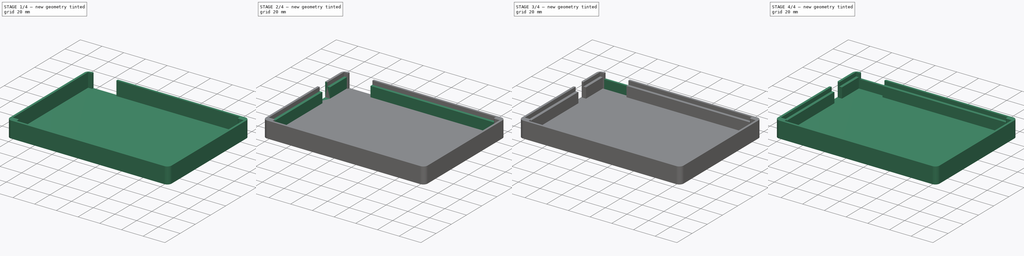
[diagram: build sequence overview — one tinted view per stage of 4, left to right]
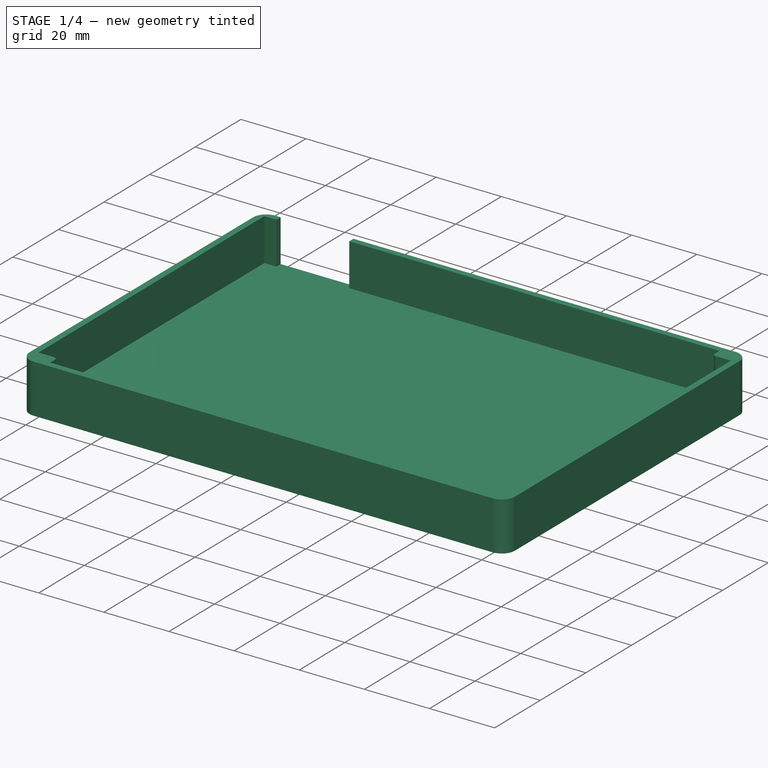
[diagram: stage 1 of 4 — iso view after this stage's code; geometry added in this stage tinted green]
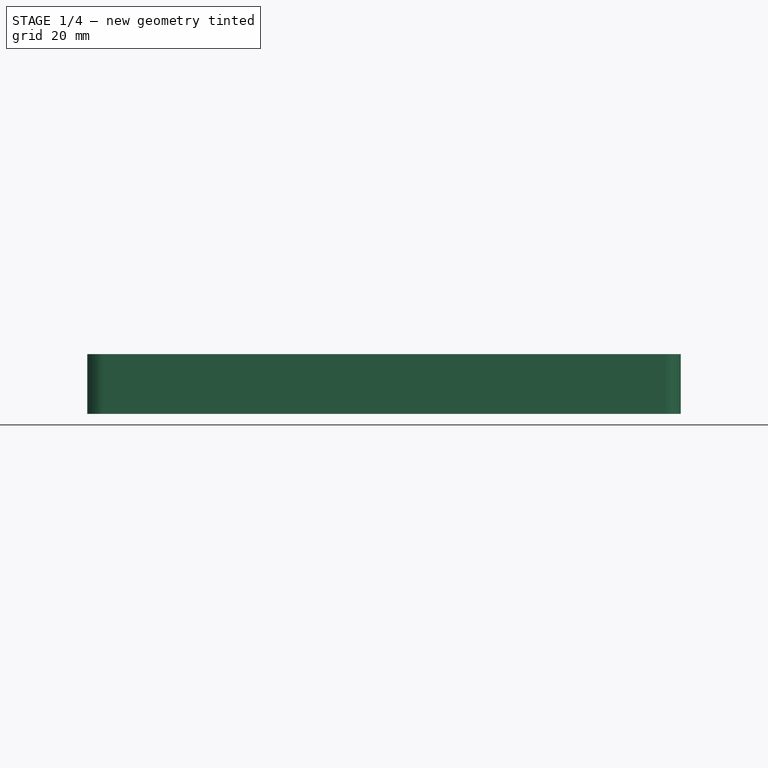
[diagram: stage 1 of 4 — front view after this stage's code; geometry added in this stage tinted green]
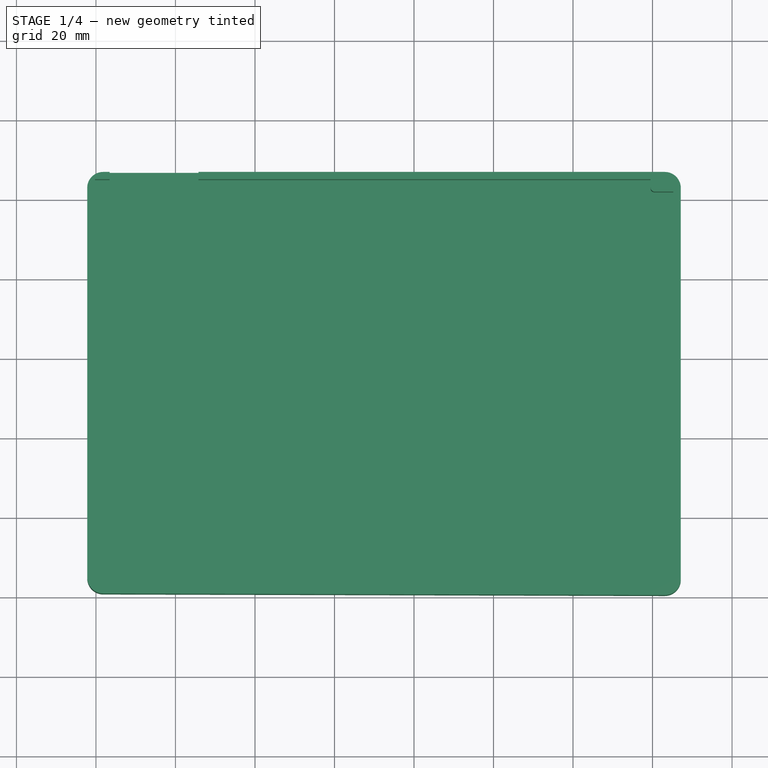
[diagram: stage 1 of 4 — top view after this stage's code; geometry added in this stage tinted green]
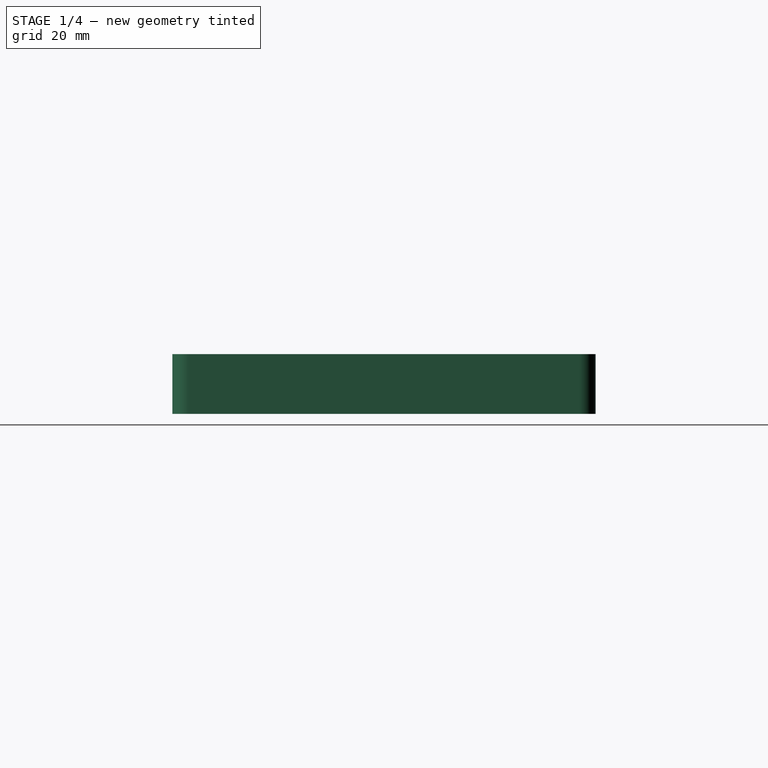
[diagram: stage 1 of 4 — right view after this stage's code; geometry added in this stage tinted green]
FCSTD DOCUMENT  (FreeCAD 1.0R39109 (Git))
Label: left_v2
License: All rights reserved
LicenseURL: https://en.wikipedia.org/wiki/All_rights_reserved
objects: Measure::MeasureLength×12, Sketcher::SketchObject×5, PartDesign::Fillet×4, PartDesign::Pad×3, PartDesign::Pocket×2, Measure::MeasureDistance×2, PartDesign::Body×1, App::DocumentObjectGroup×1
note: 38 computed .brp shape members not serialized (recipe doc carries the construction recipe); baked Part::Feature solids carry a one-line shape summary decoded from their .brp

FEATURE [Sketcher::SketchObject] Sketch
  ArcFitTolerance = 1e-06
  FullyConstrained = false
  MakeInternals = false
  sketch-geometry (49):
    g0: LineSegment StartX=83.4534 StartY=-33.1966 StartZ=0 EndX=83.4534 EndY=-34.9716 EndZ=0
    g1: LineSegment StartX=83.4515 StartY=-34.9811 StartZ=0 EndX=83.438 EndY=-34.9947 EndZ=0
    g2: LineSegment StartX=79.7534 StartY=-34.9966 StartZ=0 EndX=79.7534 EndY=-134.047 EndZ=0
    g3: LineSegment StartX=84.7064 StartY=-134.062 StartZ=0 EndX=84.879 EndY=-134.108 EndZ=0
    g4: LineSegment StartX=85.0409 StartY=-134.184 StartZ=0 EndX=85.1873 EndY=-134.286 EndZ=0
    g5: LineSegment StartX=85.3136 StartY=-134.413 StartZ=0 EndX=85.4161 EndY=-134.559 EndZ=0
    g6: LineSegment StartX=85.4916 StartY=-134.721 StartZ=0 EndX=85.5379 EndY=-134.894 EndZ=0
    g7: LineSegment StartX=85.5534 StartY=-135.072 StartZ=0 EndX=85.5534 EndY=-137.247 EndZ=0
    g8: LineSegment StartX=219.503 StartY=-137.247 StartZ=0 EndX=219.503 EndY=-134.772 EndZ=0
    g9: LineSegment StartX=219.519 StartY=-134.594 StartZ=0 EndX=219.565 EndY=-134.421 EndZ=0
    g10: LineSegment StartX=219.641 StartY=-134.259 StartZ=0 EndX=219.743 EndY=-134.113 EndZ=0
    g11: LineSegment StartX=219.87 StartY=-133.986 StartZ=0 EndX=220.016 EndY=-133.884 EndZ=0
    g12: LineSegment StartX=220.178 StartY=-133.808 StartZ=0 EndX=220.35 EndY=-133.762 EndZ=0
    g13: LineSegment StartX=220.528 StartY=-133.747 StartZ=0 EndX=225.203 EndY=-133.747 EndZ=0
    g14: LineSegment StartX=220.35 StartY=-38.081 StartZ=0 EndX=220.178 EndY=-38.0348 EndZ=0
    g15: LineSegment StartX=220.016 StartY=-37.9593 StartZ=0 EndX=219.87 EndY=-37.8568 EndZ=0
    g16: LineSegment StartX=219.743 StartY=-37.7304 StartZ=0 EndX=219.641 EndY=-37.5841 EndZ=0
    g17: LineSegment StartX=219.565 StartY=-37.4222 StartZ=0 EndX=219.519 EndY=-37.2496 EndZ=0
    g18: LineSegment StartX=219.503 StartY=-34.9966 StartZ=0 EndX=105.828 EndY=-34.9966 EndZ=0
    g19: LineSegment StartX=105.819 StartY=-34.9947 StartZ=0 EndX=105.805 EndY=-34.9811 EndZ=0
    g20: LineSegment StartX=220.35 StartY=-38.081 StartZ=0 EndX=220.528 EndY=-38.0966 EndZ=0
    g21: LineSegment StartX=220.35 StartY=-133.762 StartZ=0 EndX=220.528 EndY=-133.747 EndZ=0
    g22: LineSegment StartX=219.519 StartY=-134.594 StartZ=0 EndX=219.503 EndY=-134.772 EndZ=0
    g23: LineSegment StartX=85.5379 StartY=-134.894 StartZ=0 EndX=85.5534 EndY=-135.072 EndZ=0
    g24: LineSegment StartX=84.5284 StartY=-134.047 StartZ=0 EndX=84.7064 EndY=-134.062 EndZ=0
    g25: LineSegment StartX=83.4534 StartY=-34.9716 StartZ=0 EndX=83.4515 EndY=-34.9811 EndZ=0
    g26: LineSegment StartX=83.4284 StartY=-34.9966 StartZ=0 EndX=83.438 EndY=-34.9947 EndZ=0
    g27: LineSegment StartX=105.803 StartY=-33.1966 StartZ=0 EndX=105.803 EndY=-32.1966 EndZ=0
    g28: LineSegment StartX=83.4534 StartY=-33.1966 StartZ=0 EndX=83.4534 EndY=-32.1966 EndZ=0
    g29: LineSegment StartX=83.4534 StartY=-32.1966 StartZ=0 EndX=105.803 EndY=-32.1966 EndZ=0
    g30: LineSegment StartX=219.503 StartY=-37.0716 StartZ=0 EndX=219.519 EndY=-37.2496 EndZ=0
    g31: LineSegment StartX=219.503 StartY=-34.9966 StartZ=0 EndX=219.503 EndY=-37.0716 EndZ=0
    g32: LineSegment StartX=220.528 StartY=-38.0966 StartZ=0 EndX=225.203 EndY=-38.0966 EndZ=0
    g33: LineSegment StartX=85.5534 StartY=-137.247 StartZ=0 EndX=219.503 EndY=-137.247 EndZ=0
    g34: LineSegment StartX=79.7534 StartY=-134.047 StartZ=0 EndX=84.5284 EndY=-134.047 EndZ=0
    g35: LineSegment StartX=79.7534 StartY=-34.9966 StartZ=0 EndX=83.4284 EndY=-34.9966 EndZ=0
    g36: LineSegment StartX=105.803 StartY=-33.1966 StartZ=0 EndX=105.803 EndY=-34.9716 EndZ=0
    g37: LineSegment StartX=105.819 StartY=-34.9947 StartZ=0 EndX=105.828 EndY=-34.9966 EndZ=0
    g38: LineSegment StartX=105.803 StartY=-34.9716 StartZ=0 EndX=105.805 EndY=-34.9811 EndZ=0
    g39: LineSegment StartX=219.565 StartY=-37.4222 StartZ=0 EndX=219.641 EndY=-37.5841 EndZ=0
    g40: LineSegment StartX=219.743 StartY=-37.7304 StartZ=0 EndX=219.87 EndY=-37.8568 EndZ=0
    g41: LineSegment StartX=220.016 StartY=-37.9593 StartZ=0 EndX=220.178 EndY=-38.0348 EndZ=0
    g42: LineSegment StartX=225.203 StartY=-38.0966 StartZ=0 EndX=225.203 EndY=-133.747 EndZ=0
    g43: LineSegment StartX=219.565 StartY=-134.421 StartZ=0 EndX=219.641 EndY=-134.259 EndZ=0
    g44: LineSegment StartX=219.743 StartY=-134.113 StartZ=0 EndX=219.87 EndY=-133.986 EndZ=0
    g45: LineSegment StartX=220.016 StartY=-133.884 StartZ=0 EndX=220.178 EndY=-133.808 EndZ=0
    g46: LineSegment StartX=85.4161 StartY=-134.559 StartZ=0 EndX=85.4916 EndY=-134.721 EndZ=0
    g47: LineSegment StartX=85.1873 StartY=-134.286 StartZ=0 EndX=85.3136 EndY=-134.413 EndZ=0
    g48: LineSegment StartX=84.879 StartY=-134.108 StartZ=0 EndX=85.0409 EndY=-134.184 EndZ=0
  constraints (68):
    c: Vertical(g0)
    c: Vertical(g2)
    c: Vertical(g7)
    c: Vertical(g8)
    c: Horizontal(g13)
    c: Horizontal(g18)
    c: Coincident(g20,g14)
    c: Coincident(g21,g12)
    c: Coincident(g21,g13)
    c: Coincident(g22,g9)
    c: Coincident(g22,g8)
    c: Coincident(g23,g6)
    c: Coincident(g23,g7)
    c: Coincident(g24,g3)
    c: Coincident(g25,g0)
    c: Coincident(g25,g1)
    c: Coincident(g26,g1)
    c: Distance(g27) = 1
    c: Vertical(g27)
    c: Distance(g28) = 1
    c: Vertical(g28)
    c: Coincident(g28,g0)
    c: Coincident(g29,g28)
    c: Coincident(g29,g27)
    c: Horizontal(g29)
    c: Coincident(g30,g17)
    c: Coincident(g31,g18)
    c: Coincident(g31,g30)
    c: Vertical(g31)
    c: Coincident(g32,g20)
    c: Horizontal(g32)
    c: Coincident(g33,g7)
    c: Coincident(g33,g8)
    c: Horizontal(g33)
    c: Coincident(g34,g2)
    c: Coincident(g34,g24)
    c: Horizontal(g34)
    c: Coincident(g35,g2)
    c: Coincident(g35,g26)
    c: Horizontal(g35)
    c: Coincident(g36,g27)
    c: Vertical(g36)
    c: Coincident(g37,g19)
    c: Coincident(g37,g18)
    c: Coincident(g38,g36)
    c: Coincident(g38,g19)
    c: Coincident(g39,g17)
    c: Coincident(g39,g16)
    c: Coincident(g40,g16)
    c: Coincident(g40,g15)
    c: Coincident(g41,g15)
    c: Coincident(g41,g14)
    c: Coincident(g42,g32)
    c: Coincident(g42,g13)
    c: Vertical(g42)
    c: Coincident(g43,g9)
    c: Coincident(g43,g10)
    c: Coincident(g44,g10)
    c: Coincident(g44,g11)
    c: Coincident(g45,g11)
    c: Coincident(g45,g12)
    c: Coincident(g46,g5)
    c: Coincident(g46,g6)
    c: Coincident(g47,g4)
    c: Coincident(g47,g5)
    c: Coincident(g48,g3)
    c: Coincident(g48,g4)
    c: DistanceX(g2,g0) = 3.7
FEATURE [Sketcher::SketchObject] Sketch001
  ArcFitTolerance = 1e-06
  FullyConstrained = false
  MakeInternals = false
  sketch-geometry (72):
    g0: LineSegment StartX=225.796 StartY=-34.1971 StartZ=0 EndX=226.059 EndY=-34.46 EndZ=0
    g1: LineSegment StartX=226.297 StartY=-34.746 StartZ=0 EndX=226.507 EndY=-35.0527 EndZ=0
    g2: LineSegment StartX=226.688 StartY=-35.3775 StartZ=0 EndX=226.838 EndY=-35.7176 EndZ=0
    g3: LineSegment StartX=226.956 StartY=-36.0701 StartZ=0 EndX=227.041 EndY=-36.432 EndZ=0
    g4: LineSegment StartX=227.11 StartY=-37.1716 StartZ=0 EndX=227.11 EndY=-135.565 EndZ=0
    g5: LineSegment StartX=227.093 StartY=-135.937 StartZ=0 EndX=227.041 EndY=-136.305 EndZ=0
    g6: LineSegment StartX=227.041 StartY=-136.305 StartZ=0 EndX=226.956 EndY=-136.667 EndZ=0
    g7: LineSegment StartX=226.956 StartY=-136.667 StartZ=0 EndX=226.838 EndY=-137.019 EndZ=0
    g8: LineSegment StartX=226.838 StartY=-137.019 StartZ=0 EndX=226.688 EndY=-137.359 EndZ=0
    g9: LineSegment StartX=226.688 StartY=-137.359 StartZ=0 EndX=226.507 EndY=-137.684 EndZ=0
    g10: LineSegment StartX=226.507 StartY=-137.684 StartZ=0 EndX=226.297 EndY=-137.991 EndZ=0
    g11: LineSegment StartX=226.297 StartY=-137.991 StartZ=0 EndX=226.059 EndY=-138.277 EndZ=0
    g12: LineSegment StartX=226.059 StartY=-138.277 StartZ=0 EndX=225.796 EndY=-138.54 EndZ=0
    g13: LineSegment StartX=225.796 StartY=-138.54 StartZ=0 EndX=225.51 EndY=-138.777 EndZ=0
    g14: LineSegment StartX=225.51 StartY=-138.777 StartZ=0 EndX=225.204 EndY=-138.987 EndZ=0
    g15: LineSegment StartX=225.204 StartY=-138.987 StartZ=0 EndX=224.879 EndY=-139.168 EndZ=0
    g16: LineSegment StartX=224.879 StartY=-139.168 StartZ=0 EndX=224.539 EndY=-139.319 EndZ=0
    g17: LineSegment StartX=224.539 StartY=-139.319 StartZ=0 EndX=224.186 EndY=-139.437 EndZ=0
    g18: LineSegment StartX=224.186 StartY=-139.437 StartZ=0 EndX=223.824 EndY=-139.522 EndZ=0
    g19: LineSegment StartX=223.824 StartY=-139.522 StartZ=0 EndX=223.456 EndY=-139.573 EndZ=0
    g20: LineSegment StartX=223.085 StartY=-139.59 StartZ=0 EndX=81.8284 EndY=-139.197 EndZ=0
    g21: LineSegment StartX=81.457 StartY=-139.179 StartZ=0 EndX=81.0888 EndY=-139.128 EndZ=0
    g22: LineSegment StartX=81.0888 StartY=-139.128 StartZ=0 EndX=80.7269 EndY=-139.043 EndZ=0
    g23: LineSegment StartX=80.7269 StartY=-139.043 StartZ=0 EndX=80.3744 EndY=-138.925 EndZ=0
    g24: LineSegment StartX=80.3744 StartY=-138.925 StartZ=0 EndX=80.0343 EndY=-138.775 EndZ=0
    g25: LineSegment StartX=80.0343 StartY=-138.775 StartZ=0 EndX=79.7095 EndY=-138.594 EndZ=0
    g26: LineSegment StartX=79.7095 StartY=-138.594 StartZ=0 EndX=79.4028 EndY=-138.384 EndZ=0
    g27: LineSegment StartX=79.4028 StartY=-138.384 StartZ=0 EndX=79.1168 EndY=-138.146 EndZ=0
    g28: LineSegment StartX=79.1168 StartY=-138.146 StartZ=0 EndX=78.8539 EndY=-137.883 EndZ=0
    g29: LineSegment StartX=78.8539 StartY=-137.883 StartZ=0 EndX=78.6164 EndY=-137.597 EndZ=0
    g30: LineSegment StartX=78.6164 StartY=-137.597 StartZ=0 EndX=78.4063 EndY=-137.29 EndZ=0
    g31: LineSegment StartX=78.4063 StartY=-137.29 StartZ=0 EndX=78.2254 EndY=-136.966 EndZ=0
    g32: LineSegment StartX=78.2254 StartY=-136.966 StartZ=0 EndX=78.0752 EndY=-136.626 EndZ=0
    g33: LineSegment StartX=78.0752 StartY=-136.626 StartZ=0 EndX=77.9571 EndY=-136.273 EndZ=0
    g34: LineSegment StartX=77.9571 StartY=-136.273 StartZ=0 EndX=77.872 EndY=-135.911 EndZ=0
    g35: LineSegment StartX=77.872 StartY=-135.911 StartZ=0 EndX=77.8206 EndY=-135.543 EndZ=0
    g36: LineSegment StartX=77.8034 StartY=-135.172 StartZ=0 EndX=77.8034 EndY=-37.1716 EndZ=0
    g37: LineSegment StartX=77.8206 StartY=-36.8002 StartZ=0 EndX=77.872 EndY=-36.432 EndZ=0
    g38: LineSegment StartX=77.872 StartY=-36.432 StartZ=0 EndX=77.9571 EndY=-36.0701 EndZ=0
    g39: LineSegment StartX=77.9571 StartY=-36.0701 StartZ=0 EndX=78.0752 EndY=-35.7176 EndZ=0
    g40: LineSegment StartX=78.0752 StartY=-35.7176 StartZ=0 EndX=78.2254 EndY=-35.3775 EndZ=0
    g41: LineSegment StartX=78.2254 StartY=-35.3775 StartZ=0 EndX=78.4063 EndY=-35.0527 EndZ=0
    g42: LineSegment StartX=78.4063 StartY=-35.0527 StartZ=0 EndX=78.6164 EndY=-34.746 EndZ=0
    g43: LineSegment StartX=78.6164 StartY=-34.746 StartZ=0 EndX=78.8539 EndY=-34.46 EndZ=0
    g44: LineSegment StartX=78.8539 StartY=-34.46 StartZ=0 EndX=79.1168 EndY=-34.1971 EndZ=0
    g45: LineSegment StartX=79.1168 StartY=-34.1971 StartZ=0 EndX=79.4028 EndY=-33.9596 EndZ=0
    g46: LineSegment StartX=79.4028 StartY=-33.9596 StartZ=0 EndX=79.7095 EndY=-33.7495 EndZ=0
    g47: LineSegment StartX=79.7095 StartY=-33.7495 StartZ=0 EndX=80.0343 EndY=-33.5686 EndZ=0
    g48: LineSegment StartX=80.0343 StartY=-33.5686 StartZ=0 EndX=80.3744 EndY=-33.4184 EndZ=0
    g49: LineSegment StartX=80.3744 StartY=-33.4184 StartZ=0 EndX=80.7269 EndY=-33.3003 EndZ=0
    g50: LineSegment StartX=80.7269 StartY=-33.3003 StartZ=0 EndX=81.0888 EndY=-33.2151 EndZ=0
    g51: LineSegment StartX=81.0888 StartY=-33.2151 StartZ=0 EndX=81.457 EndY=-33.1638 EndZ=0
    g52: LineSegment StartX=81.8284 StartY=-33.1466 StartZ=0 EndX=223.085 EndY=-33.1466 EndZ=0
    g53: LineSegment StartX=223.085 StartY=-33.1466 StartZ=0 EndX=223.456 EndY=-33.1637 EndZ=0
    g54: LineSegment StartX=223.456 StartY=-33.1637 StartZ=0 EndX=223.824 EndY=-33.2151 EndZ=0
    g55: LineSegment StartX=223.824 StartY=-33.2151 StartZ=0 EndX=224.186 EndY=-33.3002 EndZ=0
    g56: LineSegment StartX=224.186 StartY=-33.3002 StartZ=0 EndX=224.539 EndY=-33.4184 EndZ=0
    g57: LineSegment StartX=224.539 StartY=-33.4184 StartZ=0 EndX=224.879 EndY=-33.5685 EndZ=0
    g58: LineSegment StartX=224.879 StartY=-33.5685 StartZ=0 EndX=225.204 EndY=-33.7494 EndZ=0
    g59: LineSegment StartX=225.204 StartY=-33.7494 StartZ=0 EndX=225.51 EndY=-33.9595 EndZ=0
    g60: LineSegment StartX=225.51 StartY=-33.9595 StartZ=0 EndX=225.796 EndY=-34.1971 EndZ=0
    g61: LineSegment StartX=226.059 StartY=-34.46 StartZ=0 EndX=226.297 EndY=-34.746 EndZ=0
    g62: LineSegment StartX=226.507 StartY=-35.0527 StartZ=0 EndX=226.688 EndY=-35.3775 EndZ=0
    g63: LineSegment StartX=226.838 StartY=-35.7176 StartZ=0 EndX=226.956 EndY=-36.0701 EndZ=0
    g64: LineSegment StartX=227.041 StartY=-36.432 StartZ=0 EndX=227.093 EndY=-36.8005 EndZ=0
    g65: LineSegment StartX=227.093 StartY=-36.8005 StartZ=0 EndX=227.11 EndY=-37.1716 EndZ=0
    g66: LineSegment StartX=227.11 StartY=-135.565 StartZ=0 EndX=227.093 EndY=-135.937 EndZ=0
    g67: LineSegment StartX=223.085 StartY=-139.59 StartZ=0 EndX=223.456 EndY=-139.573 EndZ=0
    g68: LineSegment StartX=81.8284 StartY=-139.197 StartZ=0 EndX=81.457 EndY=-139.179 EndZ=0
    g69: LineSegment StartX=77.8034 StartY=-135.172 StartZ=0 EndX=77.8206 EndY=-135.543 EndZ=0
    g70: LineSegment StartX=77.8206 StartY=-36.8002 StartZ=0 EndX=77.8034 EndY=-37.1716 EndZ=0
    g71: LineSegment StartX=81.457 StartY=-33.1638 StartZ=0 EndX=81.8284 EndY=-33.1466 EndZ=0
  constraints (33):
    c: Vertical(g4)
    c: Vertical(g36)
    c: Horizontal(g52)
    c: Coincident(g53,g52)
    c: Coincident(g54,g53)
    c: Coincident(g55,g54)
    c: Coincident(g56,g55)
    c: Coincident(g57,g56)
    c: Coincident(g58,g57)
    c: Coincident(g59,g58)
    c: Coincident(g60,g59)
    c: Coincident(g60,g0)
    c: Coincident(g61,g0)
    c: Coincident(g61,g1)
    c: Coincident(g62,g1)
    c: Coincident(g62,g2)
    c: Coincident(g63,g2)
    c: Coincident(g63,g3)
    c: Coincident(g64,g3)
    c: Coincident(g65,g64)
    c: Coincident(g65,g4)
    c: Coincident(g66,g4)
    c: Coincident(g66,g5)
    c: Coincident(g67,g20)
    c: Coincident(g67,g19)
    c: Coincident(g68,g20)
    c: Coincident(g68,g21)
    c: Coincident(g69,g36)
    c: Coincident(g69,g35)
    c: Coincident(g70,g37)
    c: Coincident(g70,g36)
    c: Coincident(g71,g51)
    c: Coincident(g71,g52)
FEATURE [PartDesign::Pad] Pad
  Direction = (0,0,1)
  Length = 15
  Length2 = 10
  Profile = -> Sketch001
  ReferenceAxis = -> Sketch001 [N_Axis]
  Refine = true
  Reversed = true
  Suppressed = false
  Type = 0
FEATURE [PartDesign::Pocket] Pocket
  BaseFeature = -> Pad
  Direction = (0,0,-1)
  Length = 13
  Length2 = 5
  Profile = -> Sketch
  ReferenceAxis = -> Sketch [N_Axis]
  Refine = true
  Suppressed = false
  Type = 0
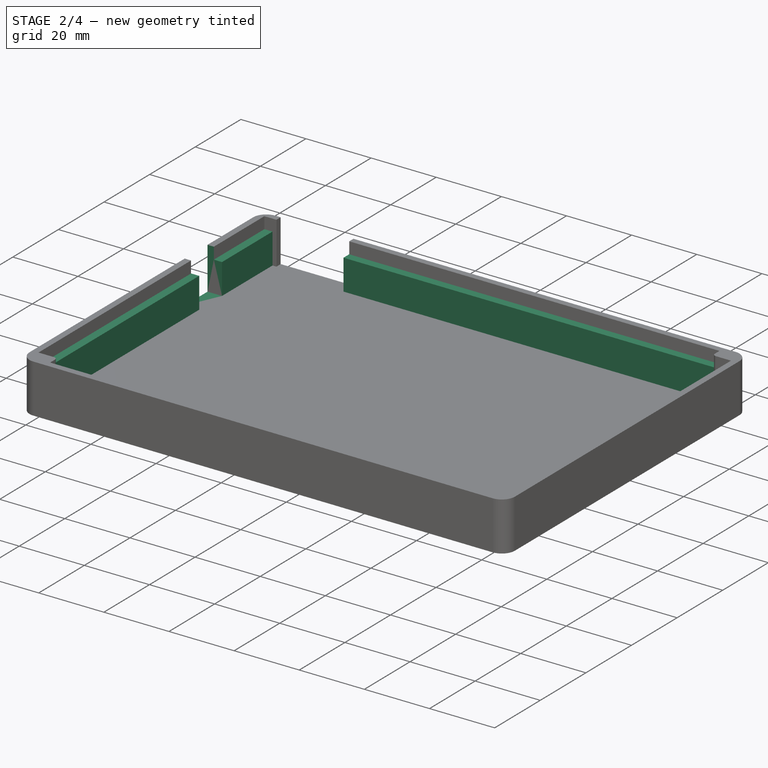
[diagram: stage 2 of 4 — iso view after this stage's code; geometry added in this stage tinted green]
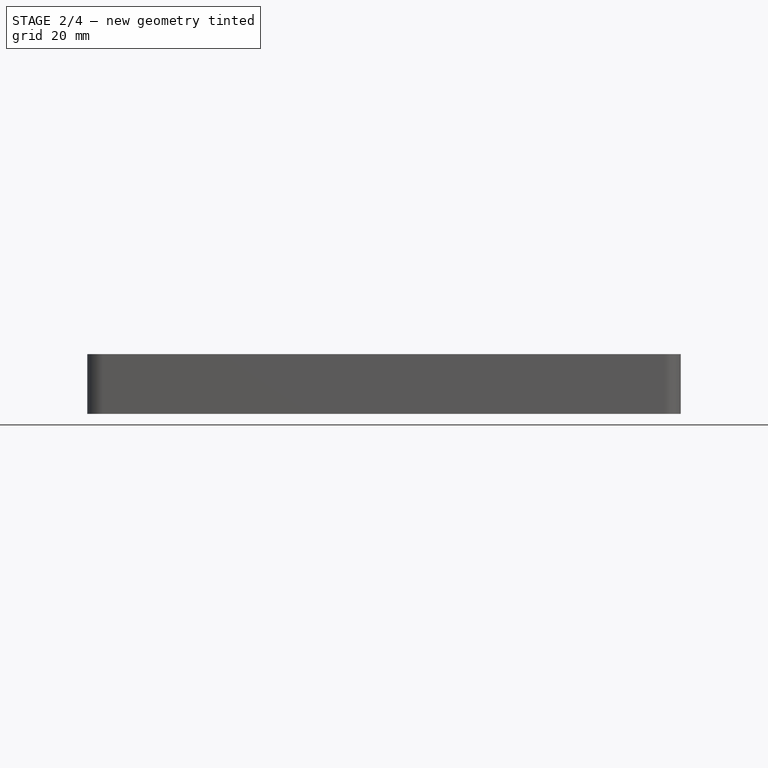
[diagram: stage 2 of 4 — front view after this stage's code; geometry added in this stage tinted green]
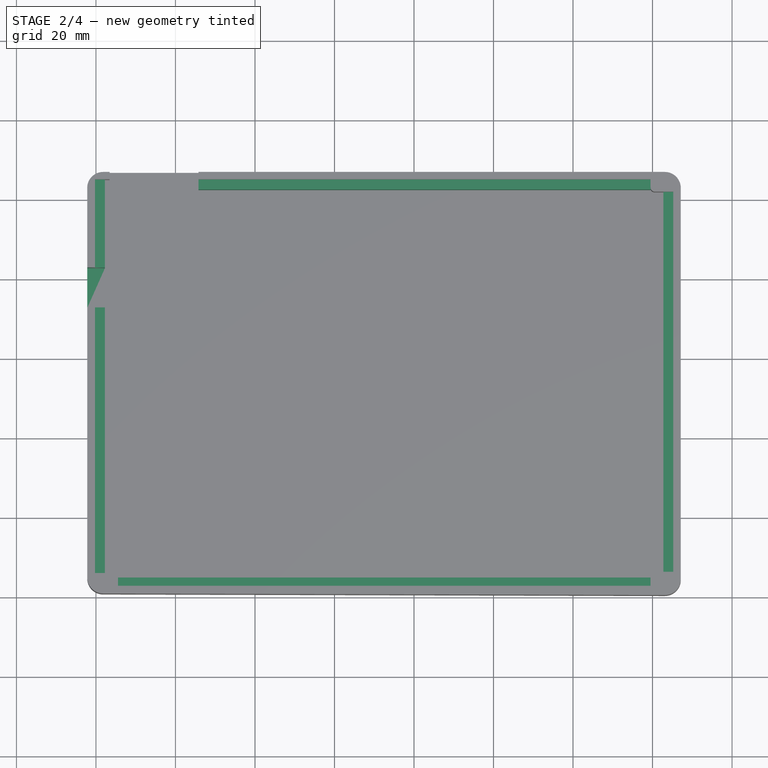
[diagram: stage 2 of 4 — top view after this stage's code; geometry added in this stage tinted green]
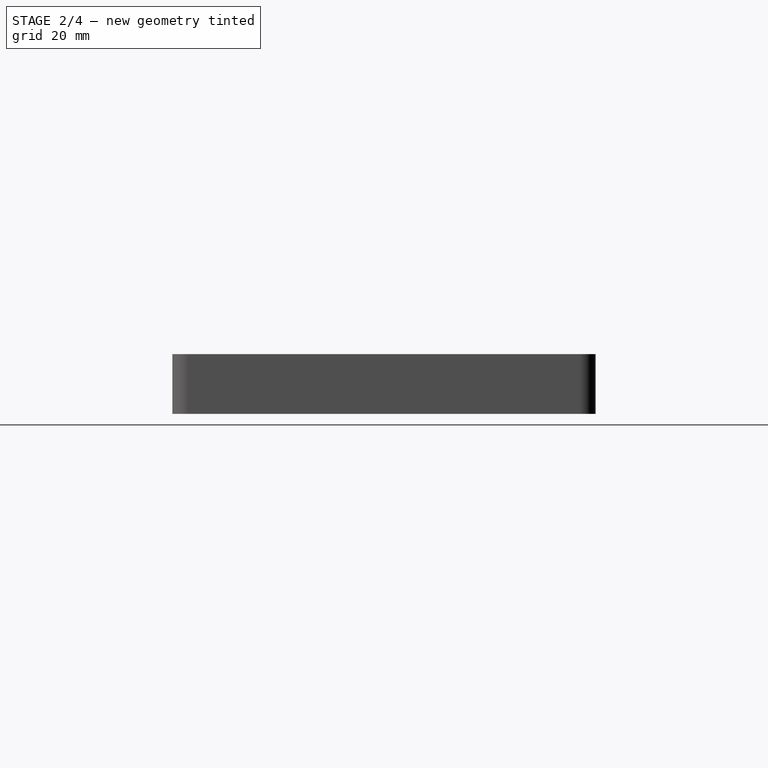
[diagram: stage 2 of 4 — right view after this stage's code; geometry added in this stage tinted green]
FEATURE [Sketcher::SketchObject] Sketch003
  ArcFitTolerance = 1e-06
  AttachmentSupport = -> [Pocket]
  FullyConstrained = false
  MakeInternals = false
  MapMode = 5
  sketch-geometry (4):
    g0: LineSegment StartX=82.6727 StartY=-57.1478 StartZ=0 EndX=67.6727 EndY=-57.1478 EndZ=0
    g1: LineSegment StartX=67.6727 StartY=-57.1478 StartZ=0 EndX=67.6727 EndY=-67.1478 EndZ=0
    g2: LineSegment StartX=67.6727 StartY=-67.1478 StartZ=0 EndX=82.6727 EndY=-67.1478 EndZ=0
    g3: LineSegment StartX=82.6727 StartY=-67.1478 StartZ=0 EndX=82.6727 EndY=-57.1478 EndZ=0
  constraints (10):
    c: Coincident(g0,g1)
    c: Coincident(g1,g2)
    c: Coincident(g2,g3)
    c: Coincident(g3,g0)
    c: Horizontal(g0)
    c: Horizontal(g2)
    c: Vertical(g1)
    c: Vertical(g3)
    c: Distance(g1,g3) = 15
    c: Distance(g0,g2) = 10
FEATURE [Sketcher::SketchObject] Sketch004
  ArcFitTolerance = 1e-06
  AttachmentSupport = -> [Pocket]
  FullyConstrained = false
  MakeInternals = false
  MapMode = 5
  Placement = pos=(0,0,-13) rot=(0,0,1;0rad)
  sketch-geometry (16):
    g0: LineSegment StartX=79.7524 StartY=-34.9953 StartZ=0 EndX=79.7524 EndY=-134.742 EndZ=0
    g1: LineSegment StartX=79.7524 StartY=-134.742 StartZ=0 EndX=82.2524 EndY=-134.742 EndZ=0
    g2: LineSegment StartX=82.2524 StartY=-134.742 StartZ=0 EndX=82.2524 EndY=-34.9953 EndZ=0
    g3: LineSegment StartX=82.2524 StartY=-34.9953 StartZ=0 EndX=79.7524 EndY=-34.9953 EndZ=0
    g4: LineSegment StartX=85.5516 StartY=-137.613 StartZ=0 EndX=219.552 EndY=-137.613 EndZ=0
    g5: LineSegment StartX=219.552 StartY=-137.613 StartZ=0 EndX=219.552 EndY=-135.113 EndZ=0
    g6: LineSegment StartX=219.552 StartY=-135.113 StartZ=0 EndX=85.5516 EndY=-135.113 EndZ=0
    g7: LineSegment StartX=85.5516 StartY=-135.113 StartZ=0 EndX=85.5516 EndY=-137.613 EndZ=0
    g8: LineSegment StartX=225.216 StartY=-133.812 StartZ=0 EndX=225.216 EndY=-37.7452 EndZ=0
    g9: LineSegment StartX=225.216 StartY=-37.7452 StartZ=0 EndX=222.716 EndY=-37.7452 EndZ=0
    g10: LineSegment StartX=222.716 StartY=-37.7452 StartZ=0 EndX=222.716 EndY=-133.812 EndZ=0
    g11: LineSegment StartX=222.716 StartY=-133.812 StartZ=0 EndX=225.216 EndY=-133.812 EndZ=0
    g12: LineSegment StartX=219.519 StartY=-34.9937 StartZ=0 EndX=105.799 EndY=-34.9937 EndZ=0
    g13: LineSegment StartX=105.799 StartY=-34.9937 StartZ=0 EndX=105.799 EndY=-37.4937 EndZ=0
    g14: LineSegment StartX=105.799 StartY=-37.4937 StartZ=0 EndX=219.519 EndY=-37.4937 EndZ=0
    g15: LineSegment StartX=219.519 StartY=-37.4937 StartZ=0 EndX=219.519 EndY=-34.9937 EndZ=0
  constraints (38):
    c: Coincident(g0,g1)
    c: Coincident(g1,g2)
    c: Coincident(g2,g3)
    c: Coincident(g3,g0)
    c: Vertical(g0)
    c: Vertical(g2)
    c: Horizontal(g1)
    c: Horizontal(g3)
    c: Distance(g0,g2) = 2.5
    c: Coincident(g4,g5)
    c: Coincident(g5,g6)
    c: Coincident(g6,g7)
    c: Coincident(g7,g4)
    c: Horizontal(g4)
    c: Horizontal(g6)
    c: Vertical(g5)
    c: Vertical(g7)
    c: Distance(g5,g7) = 134
    c: Distance(g4,g6) = 2.5
    c: Coincident(g8,g9)
    c: Coincident(g9,g10)
    c: Coincident(g10,g11)
    c: Coincident(g11,g8)
    c: Vertical(g8)
    c: Vertical(g10)
    c: Horizontal(g9)
    c: Horizontal(g11)
    c: Distance(g8,g10) = 2.5
    c: Coincident(g12,g13)
    c: Coincident(g13,g14)
    c: Coincident(g14,g15)
    c: Coincident(g15,g12)
    c: Horizontal(g12)
    c: Horizontal(g14)
    c: Vertical(g13)
    c: Vertical(g15)
    c: Distance(g13,g15) = 113.72
    c: Distance(g12,g14) = 2.5
FEATURE [PartDesign::Pad] Pad001
  BaseFeature = -> Pocket
  Direction = (0,0,1)
  Length = 9.4
  Length2 = 10
  Profile = -> Sketch004
  ReferenceAxis = -> Sketch004 [N_Axis]
  Refine = true
  Suppressed = false
  Type = 0
FEATURE [PartDesign::Pocket] Pocket001
  BaseFeature = -> Pad001
  Direction = (0,0,-1)
  Length = 13
  Length2 = 5
  Profile = -> Sketch003
  ReferenceAxis = -> Sketch003 [N_Axis]
  Refine = true
  Suppressed = false
  Type = 0
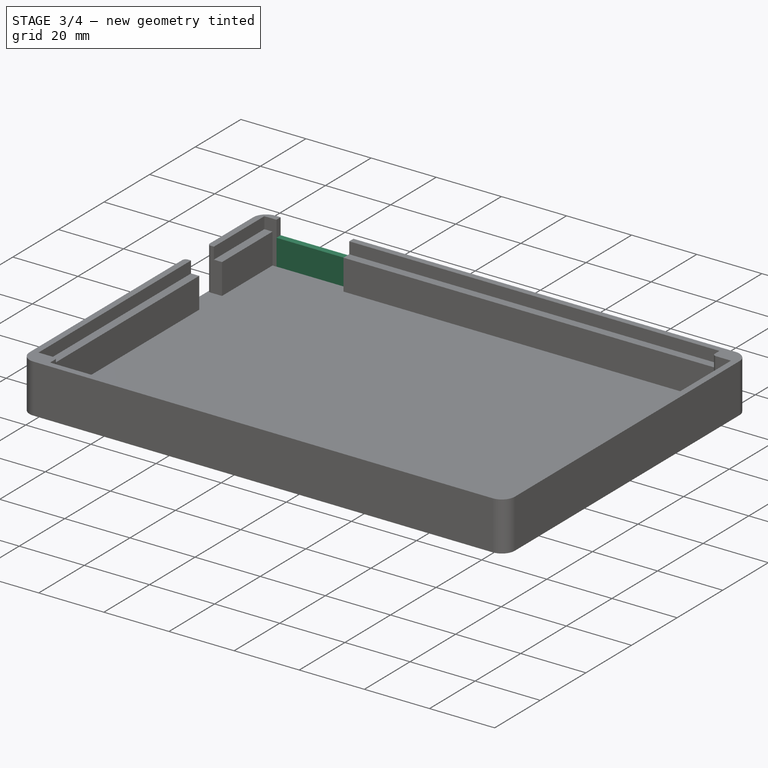
[diagram: stage 3 of 4 — iso view after this stage's code; geometry added in this stage tinted green]
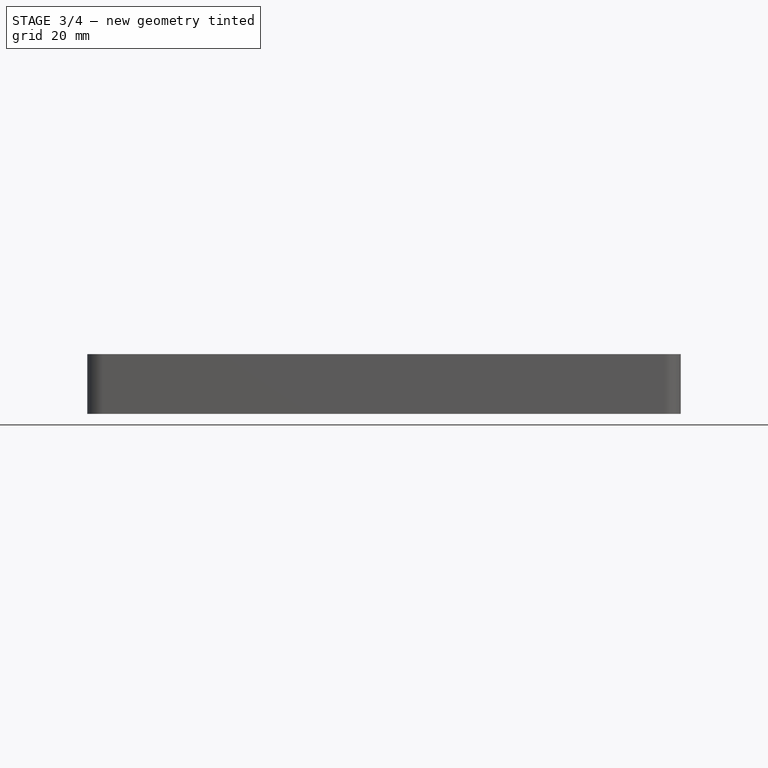
[diagram: stage 3 of 4 — front view after this stage's code; geometry added in this stage tinted green]
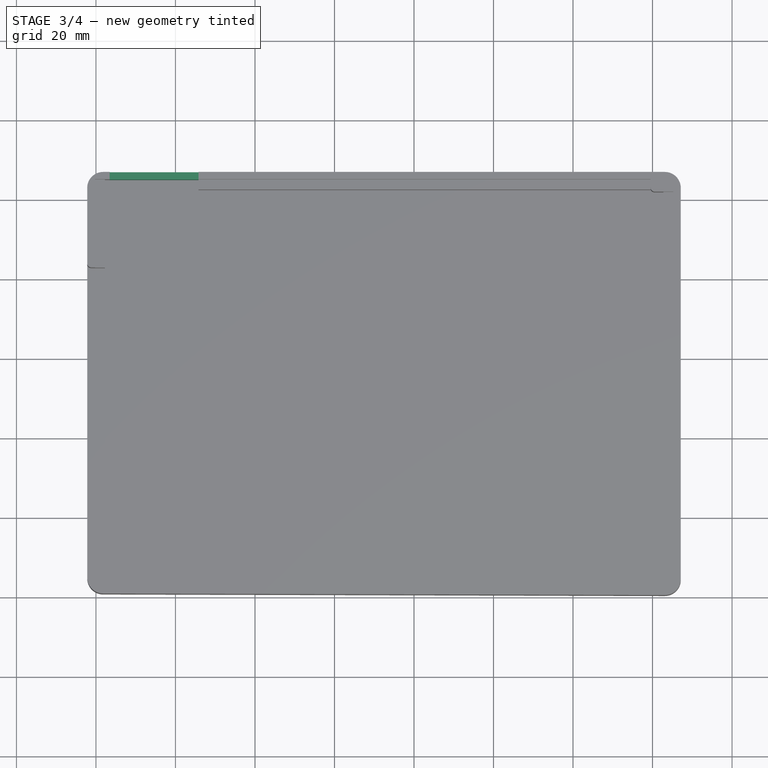
[diagram: stage 3 of 4 — top view after this stage's code; geometry added in this stage tinted green]
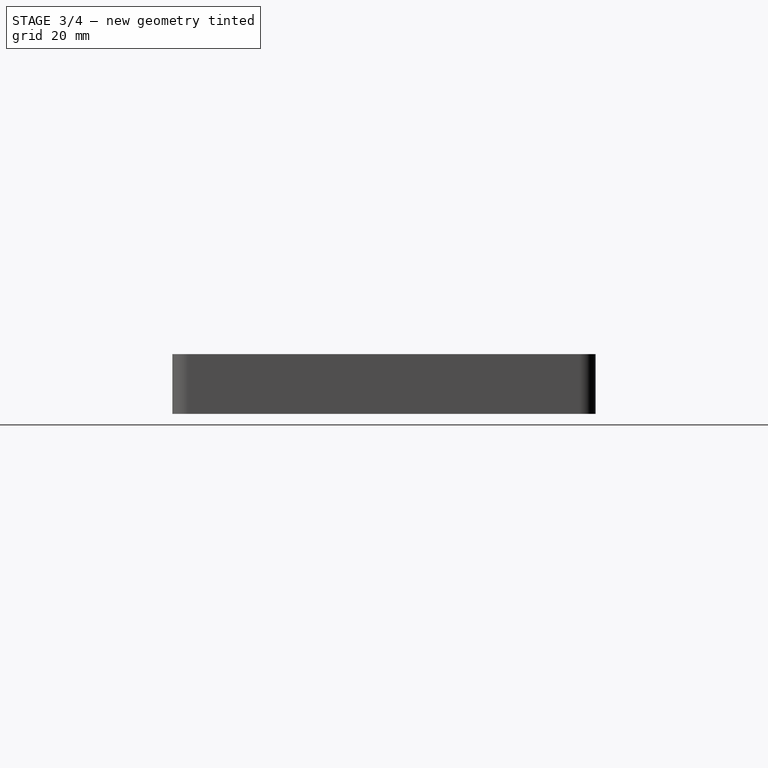
[diagram: stage 3 of 4 — right view after this stage's code; geometry added in this stage tinted green]
FEATURE [PartDesign::Fillet] Fillet
  Base = -> Pocket001 [Edge106]
  BaseFeature = -> Pocket001
  Radius = 1
  Refine = true
  SupportTransform = false
  Suppressed = false
  UseAllEdges = false
FEATURE [PartDesign::Fillet] Fillet001
  Base = -> Fillet [Edge42]
  BaseFeature = -> Fillet
  Radius = 1
  Refine = true
  SupportTransform = false
  Suppressed = false
  UseAllEdges = false
FEATURE [Sketcher::SketchObject] Sketch005
  ArcFitTolerance = 1e-06
  AttachmentSupport = -> [Fillet001]
  FullyConstrained = false
  MakeInternals = false
  MapMode = 5
  Placement = pos=(0,0,-13) rot=(0,0,1;0rad)
  sketch-geometry (4):
    g0: LineSegment StartX=83.4534 StartY=-33.1466 StartZ=0 EndX=83.4534 EndY=-34.9766 EndZ=0
    g1: LineSegment StartX=83.4534 StartY=-34.9766 StartZ=0 EndX=107.453 EndY=-34.9766 EndZ=0
    g2: LineSegment StartX=107.453 StartY=-34.9766 StartZ=0 EndX=107.453 EndY=-33.1466 EndZ=0
    g3: LineSegment StartX=107.453 StartY=-33.1466 StartZ=0 EndX=83.4534 EndY=-33.1466 EndZ=0
  constraints (10):
    c: Coincident(g0,g1)
    c: Coincident(g1,g2)
    c: Coincident(g2,g3)
    c: Coincident(g3,g0)
    c: Vertical(g0)
    c: Vertical(g2)
    c: Horizontal(g1)
    c: Horizontal(g3)
    c: Distance(g0,g2) = 24
    c: Distance(g1,g3) = 1.83
FEATURE [PartDesign::Pad] Pad002
  BaseFeature = -> Fillet001
  Direction = (0,0,1)
  Length = 8
  Length2 = 10
  Profile = -> Sketch005
  ReferenceAxis = -> Sketch005 [N_Axis]
  Refine = true
  Suppressed = false
  Type = 0
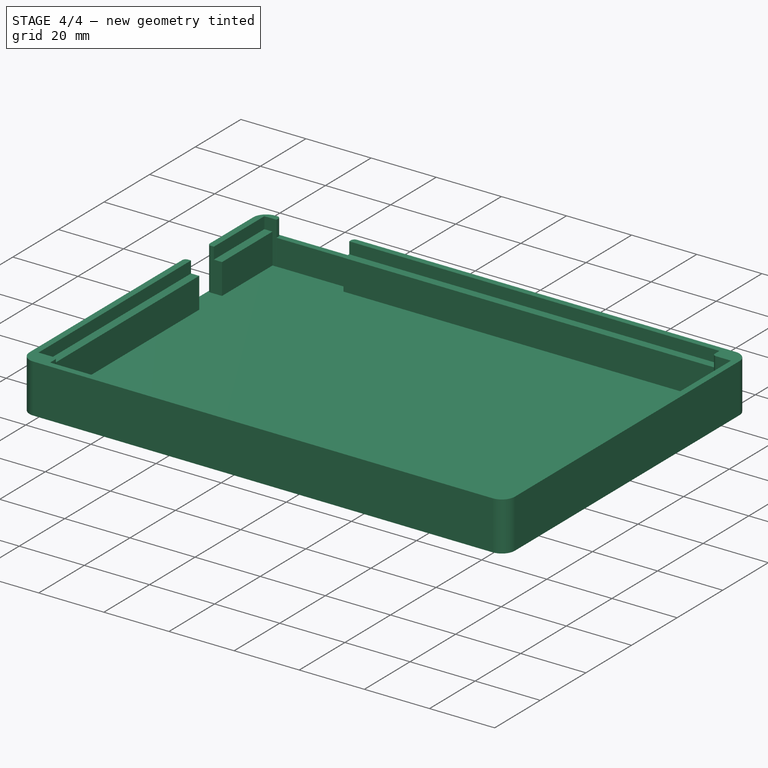
[diagram: stage 4 of 4 — iso view after this stage's code; geometry added in this stage tinted green]
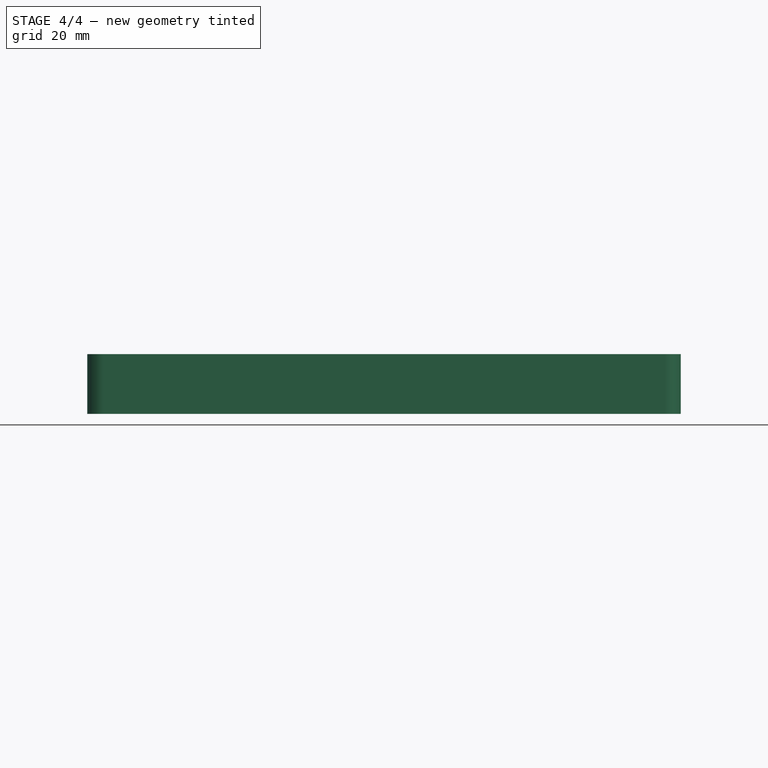
[diagram: stage 4 of 4 — front view after this stage's code; geometry added in this stage tinted green]
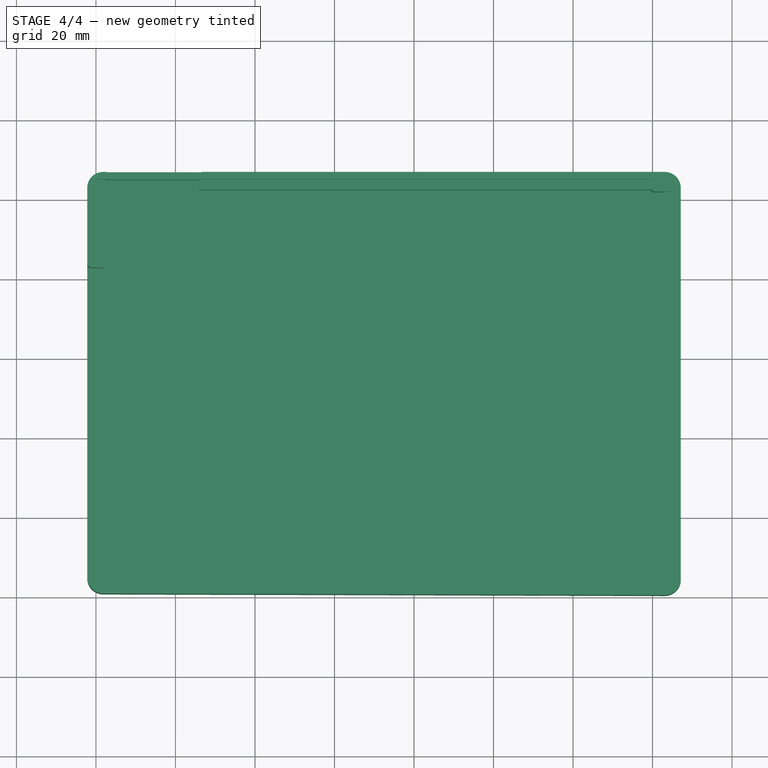
[diagram: stage 4 of 4 — top view after this stage's code; geometry added in this stage tinted green]
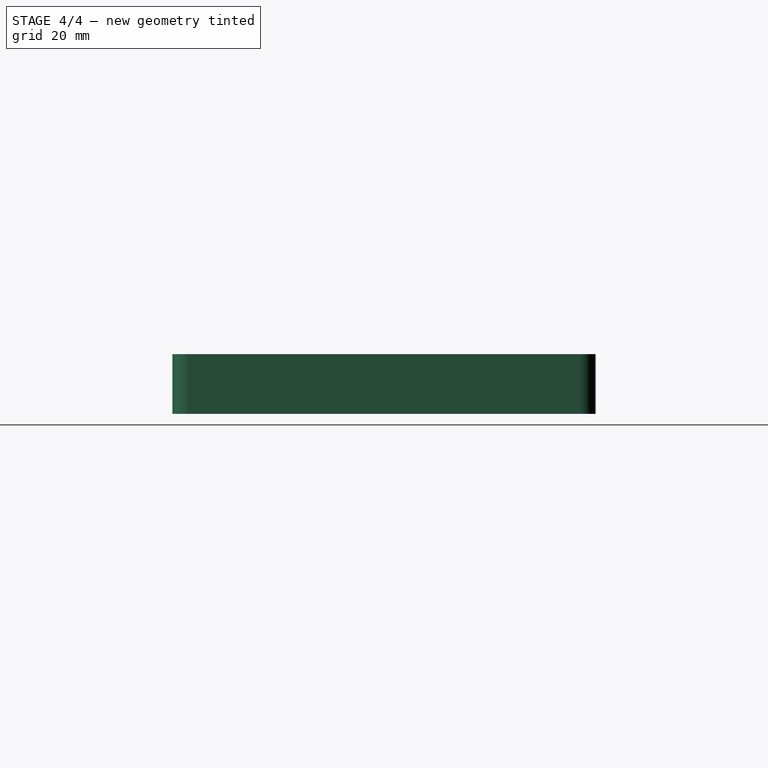
[diagram: stage 4 of 4 — right view after this stage's code; geometry added in this stage tinted green]
FEATURE [PartDesign::Fillet] Fillet002
  Base = -> Pad002 [Edge361]
  BaseFeature = -> Pad002
  Radius = 1
  Refine = true
  SupportTransform = false
  Suppressed = false
  UseAllEdges = false
FEATURE [PartDesign::Fillet] Fillet003
  Base = -> Fillet002 [Edge117]
  BaseFeature = -> Fillet002
  Radius = 1
  Refine = true
  SupportTransform = false
  Suppressed = false
  UseAllEdges = false
FEATURE [PartDesign::Body] Body
  AllowCompound = false
  Group = -> [Sketch,Sketch001,Pad,Pocket,Sketch003,Sketch004,Pad001,Pocket001,Fillet,Fillet001,Sketch005,Pad002,Fillet002,Fillet003]
  Origin = -> Origin
  Tip = -> Fillet003
FEATURE [Measure::MeasureLength] Length  label="Length: 3.67 mm"
  Elements = -> [Body]
  Length = 3.675
FEATURE [Measure::MeasureDistance] Distance  label="Distance: 1.95 mm"
  Distance = 1.95001
  DistanceX = 1.95001
  DistanceY = 0
  DistanceZ = 0
  Element1 = -> Body [Fillet003.Edge28]
  Element2 = -> Body [Fillet003.Edge22]
  Position1 = (77.8034,-56.1478,0)
  Position2 = (79.7534,-56.1478,0)
FEATURE [Measure::MeasureLength] Length001  label="Length001: 22.35 mm"
  Elements = -> [Body]
  Length = 22.351
FEATURE [Measure::MeasureLength] Length002  label="Length002: 113.72 mm"
  Elements = -> [Body]
  Length = 113.72
FEATURE [Measure::MeasureLength] Length003  label="Length003: 2.50 mm"
  Elements = -> [Body]
  Length = 2.49896
FEATURE [Measure::MeasureLength] Length004  label="Length004: 22.35 mm"
  Elements = -> [Body]
  Length = 22.351
FEATURE [Measure::MeasureLength] Length005  label="Length005: 4.77 mm"
  Elements = -> [Body]
  Length = 4.775
FEATURE [Measure::MeasureLength] Length006  label="Length006: 2.18 mm"
  Elements = -> [Body]
  Length = 2.17503
FEATURE [Measure::MeasureLength] Length007  label="Length007: 4.68 mm"
  Elements = -> [Body]
  Length = 4.67502
FEATURE [Measure::MeasureLength] Length008  label="Length008: 2.08 mm"
  Elements = -> [Body]
  Length = 2.075
FEATURE [Measure::MeasureLength] Length009  label="Length009: 4.68 mm"
  Elements = -> [Body]
  Length = 4.67502
FEATURE [Measure::MeasureLength] Length010  label="Length010: 2.48 mm"
  Elements = -> [Body]
  Length = 2.47503
FEATURE [Measure::MeasureLength] Length011  label="Length011: 22.15 mm"
  Elements = -> [Body]
  Length = 22.1512
FEATURE [Measure::MeasureDistance] Distance001  label="Distance001: 1.85 mm"
  Distance = 1.85001
  DistanceX = 0
  DistanceY = 1.85001
  DistanceZ = 0
  Element1 = -> Body [Fillet003.Edge9]
  Element2 = -> Body [Fillet003.Edge129]
  Position1 = (106.803,-33.1466,0)
  Position2 = (106.803,-34.9966,0)
FEATURE [App::DocumentObjectGroup] Measurements
  Group = -> [Length,Distance,Length001,Length002,Length003,Length004,Length005,Length006,Length007,Length008,Length009,Length010,Length011,Distance001]
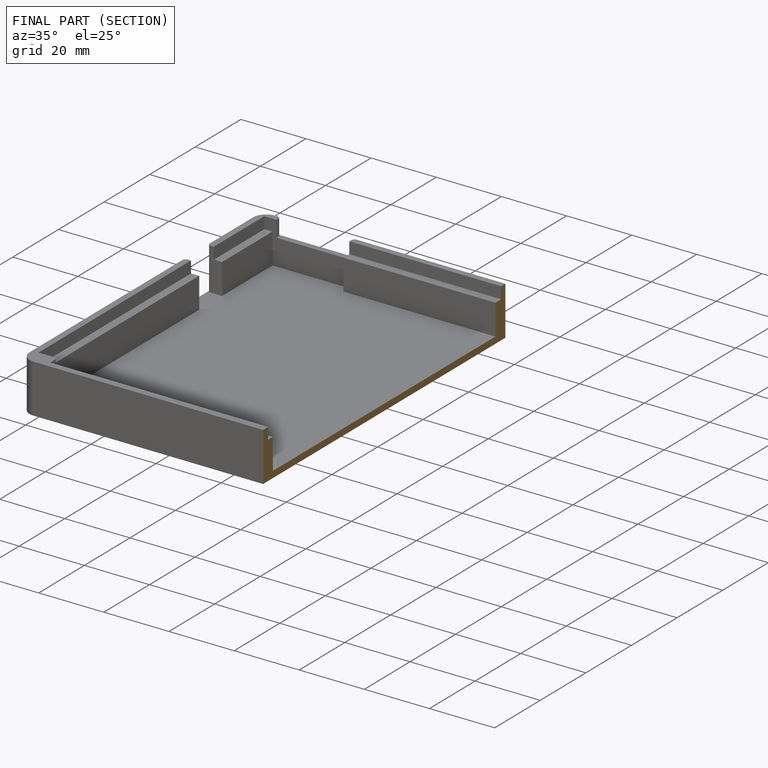
[diagram: finished part — half-section view (interior)]
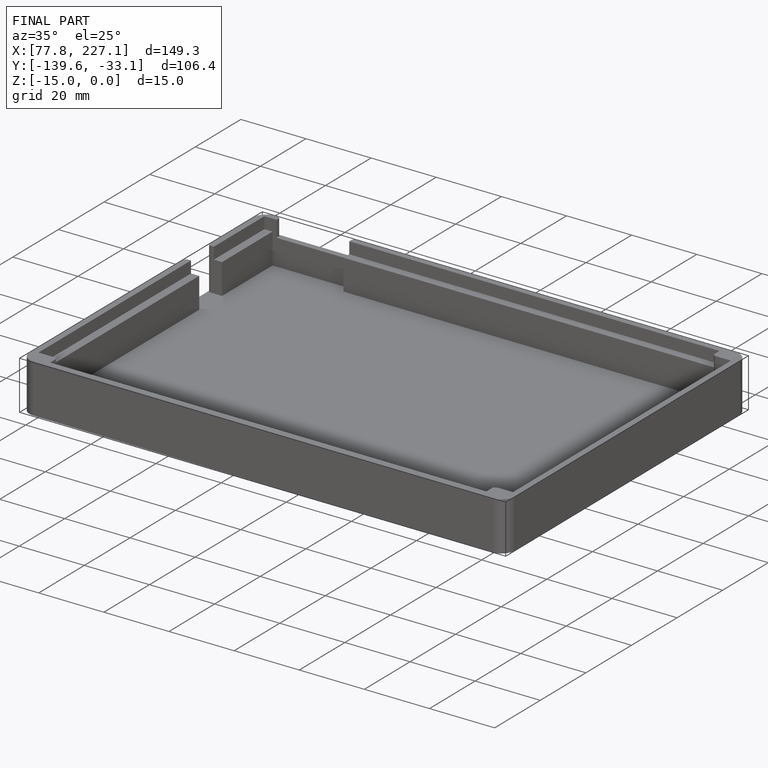
[diagram: finished part — iso view with bounding-box wireframe]
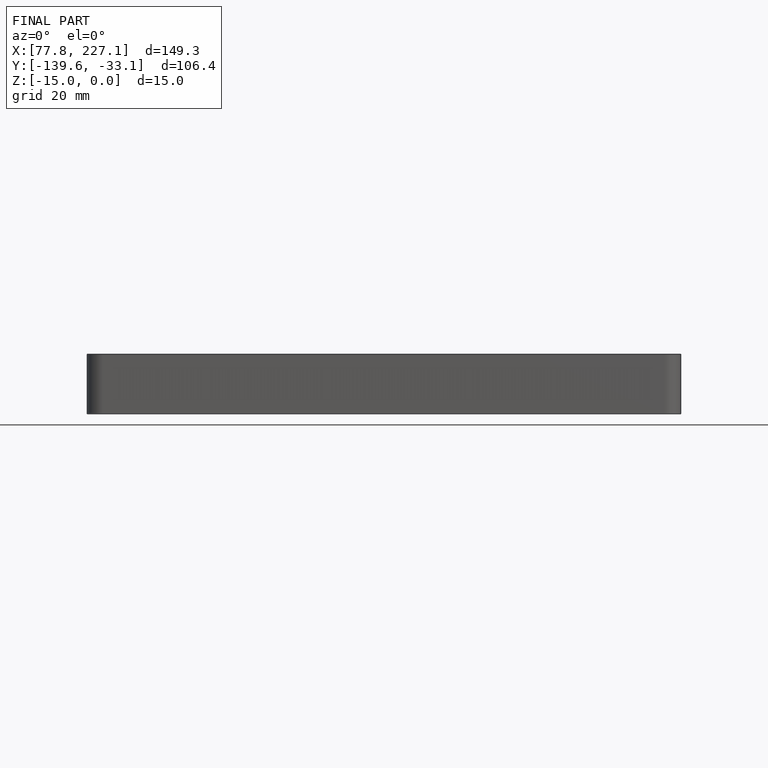
[diagram: finished part — front view with bounding-box wireframe]
